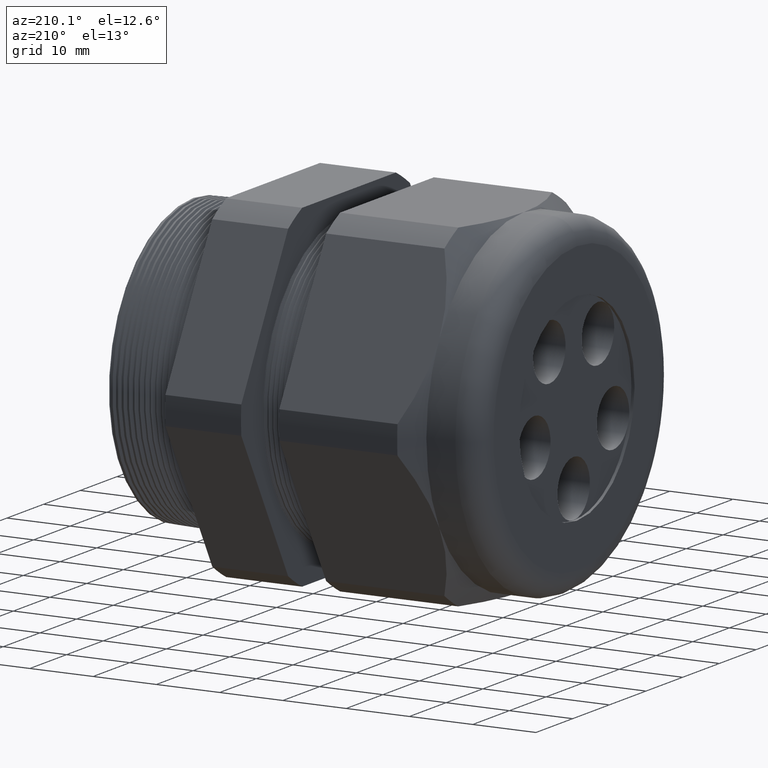
[diagram: clean part render]
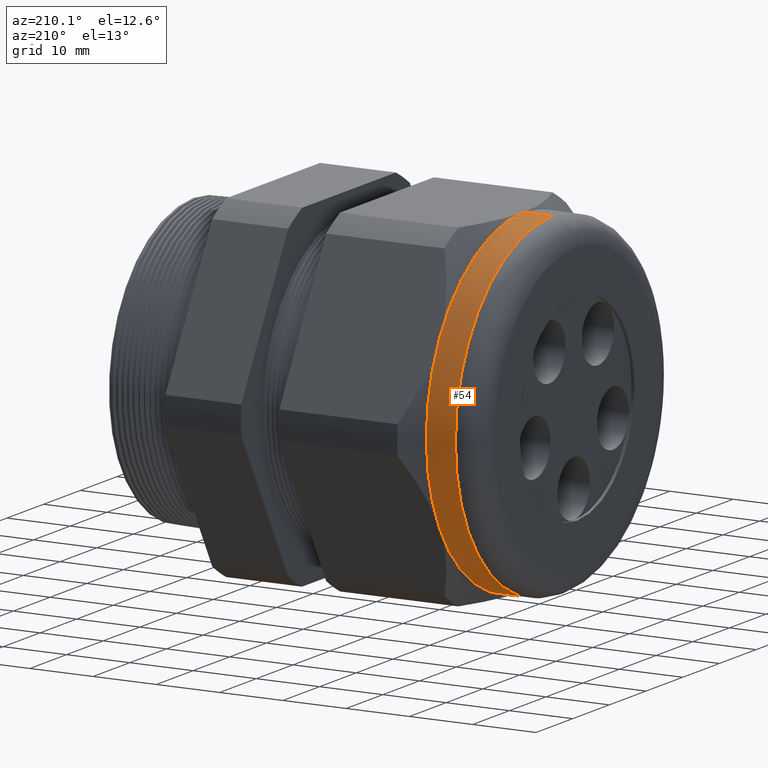
[diagram: same view with one face highlighted and labeled with its STEP entity id]
A machine part, auxiliary view. The second image highlights one B-rep face of the part: STEP entity #54.
In plain terms, the highlighted cylindrical surface (partial cylindrical patch) has radius 26.543 mm, axis along (1, 0, 0).
Its self-contained STEP definition (entity closure, byte-faithful):
#6 = EDGE_CURVE ( 'NONE', #7, #11, #1577, .T. ) ;
#7 = VERTEX_POINT ( 'NONE', #1572 ) ;
#11 = VERTEX_POINT ( 'NONE', #1570 ) ;
#45 = EDGE_LOOP ( 'NONE', ( #164, #151, #148, #150, #157, #143 ) ) ;
#54 = ADVANCED_FACE ( 'NONE', ( #1664 ), #1662, .T. ) ;
#142 = VERTEX_POINT ( 'NONE', #1854 ) ;
#143 = ORIENTED_EDGE ( 'NONE', *, *, #724, .F. ) ;
#148 = ORIENTED_EDGE ( 'NONE', *, *, #162, .F. ) ;
#149 = VERTEX_POINT ( 'NONE', #1834 ) ;
#150 = ORIENTED_EDGE ( 'NONE', *, *, #159, .F. ) ;
#151 = ORIENTED_EDGE ( 'NONE', *, *, #163, .T. ) ;
#152 = VERTEX_POINT ( 'NONE', #1833 ) ;
#155 = EDGE_CURVE ( 'NONE', #142, #156, #1892, .T. ) ;
#156 = VERTEX_POINT ( 'NONE', #1887 ) ;
#157 = ORIENTED_EDGE ( 'NONE', *, *, #155, .F. ) ;
#159 = EDGE_CURVE ( 'NONE', #156, #149, #1885, .T. ) ;
#162 = EDGE_CURVE ( 'NONE', #149, #152, #1875, .T. ) ;
#163 = EDGE_CURVE ( 'NONE', #11, #152, #1870, .T. ) ;
#164 = ORIENTED_EDGE ( 'NONE', *, *, #6, .T. ) ;
#724 = EDGE_CURVE ( 'NONE', #7, #142, #3004, .T. ) ;
#1570 = CARTESIAN_POINT ( 'NONE',  ( -2.049999999999999400, 1.279755905108984100E-016, 1.044999999999999900 ) ) ;
#1572 = CARTESIAN_POINT ( 'NONE',  ( -2.049999999999999400, 0.0000000000000000000, -1.044999999999999900 ) ) ;
#1573 = DIRECTION ( 'NONE',  ( 0.0000000000000000000, 0.0000000000000000000, 1.000000000000000000 ) ) ;
#1574 = DIRECTION ( 'NONE',  ( 1.000000000000000000, 0.0000000000000000000, 0.0000000000000000000 ) ) ;
#1575 = CARTESIAN_POINT ( 'NONE',  ( -2.049999999999999400, 0.0000000000000000000, 0.0000000000000000000 ) ) ;
#1576 = AXIS2_PLACEMENT_3D ( 'NONE', #1575, #1574, #1573 ) ;
#1577 = CIRCLE ( 'NONE', #1576, 1.044999999999999900 ) ;
#1658 = DIRECTION ( 'NONE',  ( 0.0000000000000000000, 0.0000000000000000000, -1.000000000000000000 ) ) ;
#1659 = DIRECTION ( 'NONE',  ( 1.000000000000000000, 0.0000000000000000000, 0.0000000000000000000 ) ) ;
#1660 = CARTESIAN_POINT ( 'NONE',  ( 0.0000000000000000000, 0.0000000000000000000, 0.0000000000000000000 ) ) ;
#1661 = AXIS2_PLACEMENT_3D ( 'NONE', #1660, #1659, #1658 ) ;
#1662 = CYLINDRICAL_SURFACE ( 'NONE', #1661, 1.044999999999999900 ) ;
#1664 = FACE_OUTER_BOUND ( 'NONE', #45, .T. ) ;
#1833 = CARTESIAN_POINT ( 'NONE',  ( -1.869291999999999300, 0.0000000000000000000, 1.044999999999999900 ) ) ;
#1834 = CARTESIAN_POINT ( 'NONE',  ( -1.869291999999999300, 0.9049965469547388600, 0.5225000000000000800 ) ) ;
#1854 = CARTESIAN_POINT ( 'NONE',  ( -1.869291999999999300, 0.0000000000000000000, -1.044999999999999900 ) ) ;
#1867 = DIRECTION ( 'NONE',  ( 1.000000000000000000, 0.0000000000000000000, 0.0000000000000000000 ) ) ;
#1868 = VECTOR ( 'NONE', #1867, 39.37007874015748100 ) ;
#1869 = CARTESIAN_POINT ( 'NONE',  ( 0.0000000000000000000, 1.279755905108984100E-016, 1.044999999999999900 ) ) ;
#1870 = LINE ( 'NONE', #1869, #1868 ) ;
#1871 = DIRECTION ( 'NONE',  ( 0.0000000000000000000, 0.0000000000000000000, -1.000000000000000000 ) ) ;
#1872 = DIRECTION ( 'NONE',  ( 1.000000000000000000, 0.0000000000000000000, 0.0000000000000000000 ) ) ;
#1873 = CARTESIAN_POINT ( 'NONE',  ( -1.869291999999999300, 0.0000000000000000000, 0.0000000000000000000 ) ) ;
#1874 = AXIS2_PLACEMENT_3D ( 'NONE', #1873, #1872, #1871 ) ;
#1875 = CIRCLE ( 'NONE', #1874, 1.044999999999999900 ) ;
#1881 = DIRECTION ( 'NONE',  ( 0.0000000000000000000, 0.0000000000000000000, -1.000000000000000000 ) ) ;
#1882 = DIRECTION ( 'NONE',  ( 1.000000000000000000, 0.0000000000000000000, 0.0000000000000000000 ) ) ;
#1883 = CARTESIAN_POINT ( 'NONE',  ( -1.869291999999999300, 0.0000000000000000000, 0.0000000000000000000 ) ) ;
#1884 = AXIS2_PLACEMENT_3D ( 'NONE', #1883, #1882, #1881 ) ;
#1885 = CIRCLE ( 'NONE', #1884, 1.044999999999999900 ) ;
#1887 = CARTESIAN_POINT ( 'NONE',  ( -1.869291999999999300, 0.9049965469547386300, -0.5225000000000004100 ) ) ;
#1888 = DIRECTION ( 'NONE',  ( 0.0000000000000000000, 0.0000000000000000000, -1.000000000000000000 ) ) ;
#1889 = DIRECTION ( 'NONE',  ( 1.000000000000000000, 0.0000000000000000000, 0.0000000000000000000 ) ) ;
#1890 = CARTESIAN_POINT ( 'NONE',  ( -1.869291999999999300, 0.0000000000000000000, 0.0000000000000000000 ) ) ;
#1891 = AXIS2_PLACEMENT_3D ( 'NONE', #1890, #1889, #1888 ) ;
#1892 = CIRCLE ( 'NONE', #1891, 1.044999999999999900 ) ;
#3001 = DIRECTION ( 'NONE',  ( 1.000000000000000000, 0.0000000000000000000, 0.0000000000000000000 ) ) ;
#3002 = VECTOR ( 'NONE', #3001, 39.37007874015748100 ) ;
#3003 = CARTESIAN_POINT ( 'NONE',  ( 0.0000000000000000000, 0.0000000000000000000, -1.044999999999999900 ) ) ;
#3004 = LINE ( 'NONE', #3003, #3002 ) ;